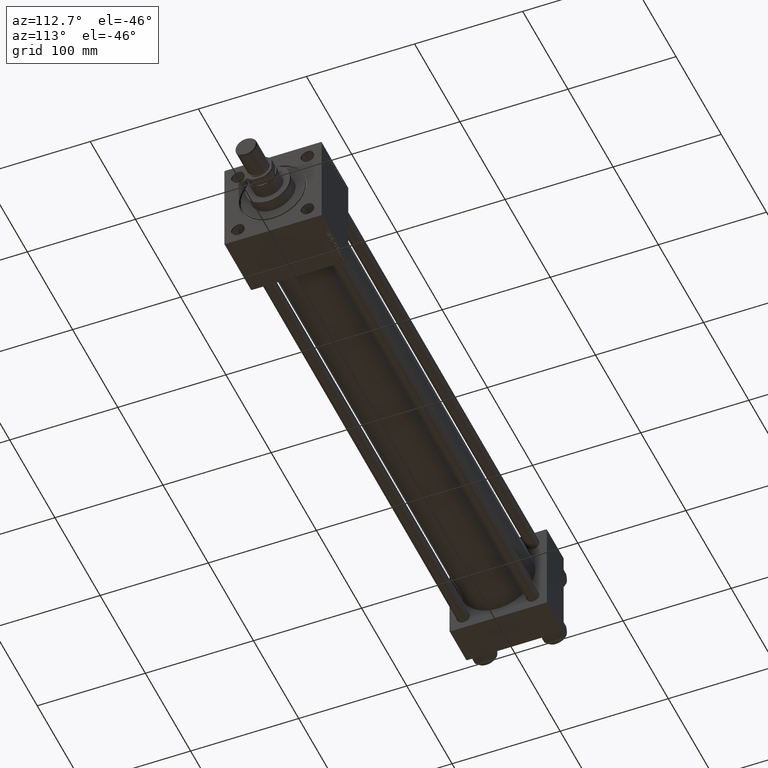
[diagram: clean part render]
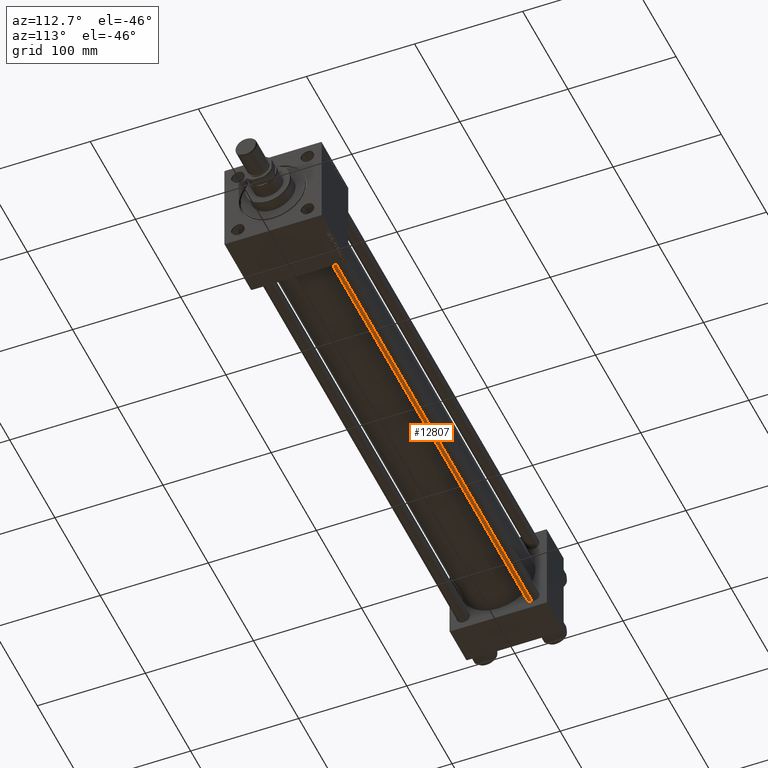
[diagram: same view with one face highlighted and labeled with its STEP entity id]
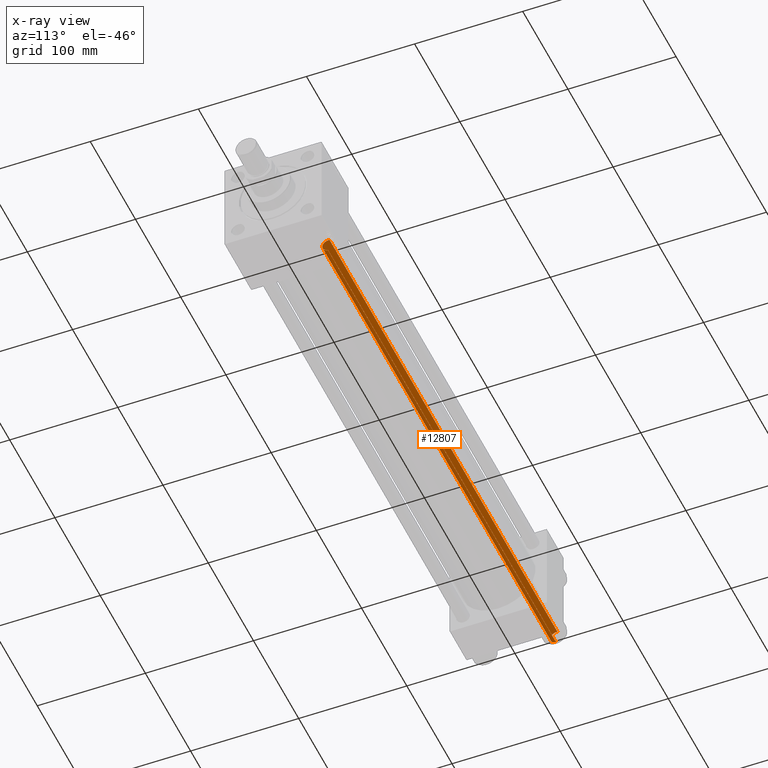
[diagram: x-ray of the same camera — body ghosted, the highlighted face saturated]
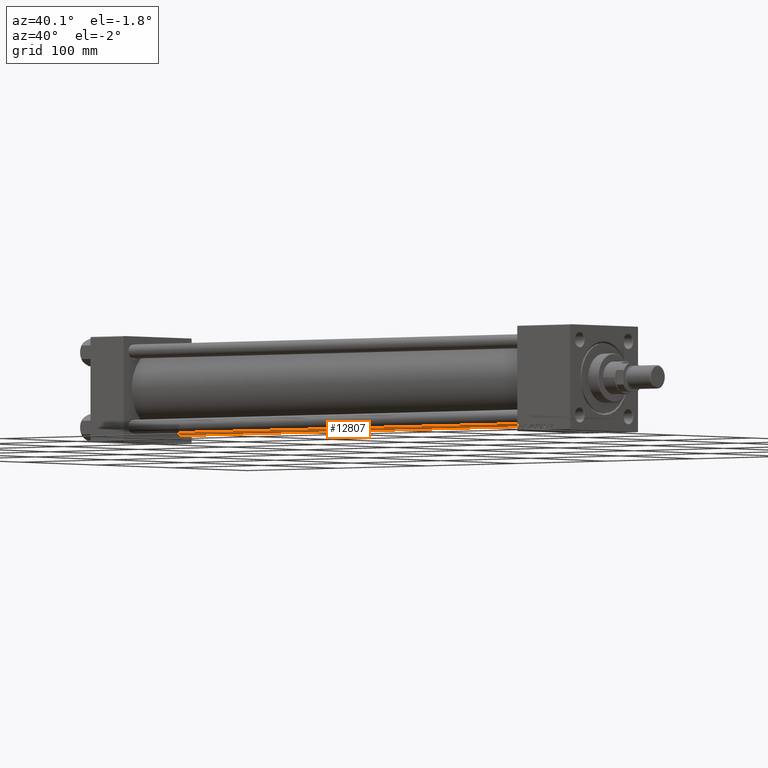
[diagram: same view with one face highlighted and labeled with its STEP entity id]
A machine part, auxiliary view. The second image highlights one B-rep face of the part: STEP entity #12807.
The next image is the same camera in x-ray: the body ghosted, the highlighted face saturated — about 0% of this face is hidden behind the body in this view.
A second angle (auxiliary view) of the same face is appended — the face is thin or edge-on in the first view.
In plain terms, the highlighted cylindrical surface (edge-blend (fillet) strip) has radius 6 mm, axis along (1, -0, 0).
Its self-contained STEP definition (entity closure, byte-faithful):
#431 = VECTOR ( 'NONE', #3980, 1000.000000000000000 ) ;
#3980 = DIRECTION ( 'NONE',  ( -0.000000000000000000, -0.000000000000000000, -1.000000000000000000 ) ) ;
#5478 = EDGE_CURVE ( 'NONE', #48808, #38704, #42038, .T. ) ;
#5577 = CARTESIAN_POINT ( 'NONE',  ( 0.000000000000000000, 0.000000000000000000, 504.5000000000001705 ) ) ;
#6868 = LINE ( 'NONE', #25838, #7082 ) ;
#7082 = VECTOR ( 'NONE', #22507, 1000.000000000000000 ) ;
#7613 = DIRECTION ( 'NONE',  ( 1.000000000000000000, 0.000000000000000000, 0.000000000000000000 ) ) ;
#9872 = DIRECTION ( 'NONE',  ( -0.000000000000000000, -0.000000000000000000, -1.000000000000000000 ) ) ;
#12807 = ADVANCED_FACE ( 'NONE', ( #13731 ), #22176, .T. ) ;
#13678 = AXIS2_PLACEMENT_3D ( 'NONE', #18082, #9872, #37804 ) ;
#13731 = FACE_OUTER_BOUND ( 'NONE', #23673, .T. ) ;
#13849 = CARTESIAN_POINT ( 'NONE',  ( -6.000000000000000888, 0.000000000000000000, 504.5000000000001705 ) ) ;
#14298 = VERTEX_POINT ( 'NONE', #45931 ) ;
#16158 = ORIENTED_EDGE ( 'NONE', *, *, #31698, .T. ) ;
#16375 = EDGE_CURVE ( 'NONE', #38704, #14298, #6868, .T. ) ;
#17154 = AXIS2_PLACEMENT_3D ( 'NONE', #39628, #23509, #7613 ) ;
#17366 = DIRECTION ( 'NONE',  ( 0.000000000000000000, 0.000000000000000000, -1.000000000000000000 ) ) ;
#18082 = CARTESIAN_POINT ( 'NONE',  ( 0.000000000000000000, 0.000000000000000000, 505.0000000000000000 ) ) ;
#22176 = CYLINDRICAL_SURFACE ( 'NONE', #13678, 6.000000000000000888 ) ;
#22507 = DIRECTION ( 'NONE',  ( -0.000000000000000000, -0.000000000000000000, -1.000000000000000000 ) ) ;
#22854 = ORIENTED_EDGE ( 'NONE', *, *, #5478, .T. ) ;
#23509 = DIRECTION ( 'NONE',  ( -0.000000000000000000, -0.000000000000000000, 1.000000000000000000 ) ) ;
#23673 = EDGE_LOOP ( 'NONE', ( #40547, #22854, #44403, #16158 ) ) ;
#23953 = LINE ( 'NONE', #39587, #431 ) ;
#25838 = CARTESIAN_POINT ( 'NONE',  ( -6.000000000000000888, 0.000000000000000000, 505.0000000000000000 ) ) ;
#28638 = DIRECTION ( 'NONE',  ( 1.000000000000000000, 0.000000000000000000, 0.000000000000000000 ) ) ;
#29028 = CARTESIAN_POINT ( 'NONE',  ( 6.000000000000000888, 7.347880794884120722E-16, 0.5000000000000559552 ) ) ;
#30383 = CARTESIAN_POINT ( 'NONE',  ( 6.000000000000000888, 7.347880794884120722E-16, 504.5000000000001705 ) ) ;
#31406 = AXIS2_PLACEMENT_3D ( 'NONE', #5577, #17366, #28638 ) ;
#31698 = EDGE_CURVE ( 'NONE', #14298, #39861, #35188, .T. ) ;
#35188 = CIRCLE ( 'NONE', #17154, 6.000000000000000888 ) ;
#37804 = DIRECTION ( 'NONE',  ( -1.000000000000000000, 0.000000000000000000, 0.000000000000000000 ) ) ;
#38704 = VERTEX_POINT ( 'NONE', #13849 ) ;
#39587 = CARTESIAN_POINT ( 'NONE',  ( 6.000000000000000888, 7.347880794884120722E-16, 505.0000000000000000 ) ) ;
#39628 = CARTESIAN_POINT ( 'NONE',  ( 0.000000000000000000, 0.000000000000000000, 0.5000000000000559552 ) ) ;
#39861 = VERTEX_POINT ( 'NONE', #29028 ) ;
#40547 = ORIENTED_EDGE ( 'NONE', *, *, #49022, .F. ) ;
#42038 = CIRCLE ( 'NONE', #31406, 6.000000000000000888 ) ;
#44403 = ORIENTED_EDGE ( 'NONE', *, *, #16375, .T. ) ;
#45931 = CARTESIAN_POINT ( 'NONE',  ( -6.000000000000000888, 0.000000000000000000, 0.5000000000000559552 ) ) ;
#48808 = VERTEX_POINT ( 'NONE', #30383 ) ;
#49022 = EDGE_CURVE ( 'NONE', #48808, #39861, #23953, .T. ) ;